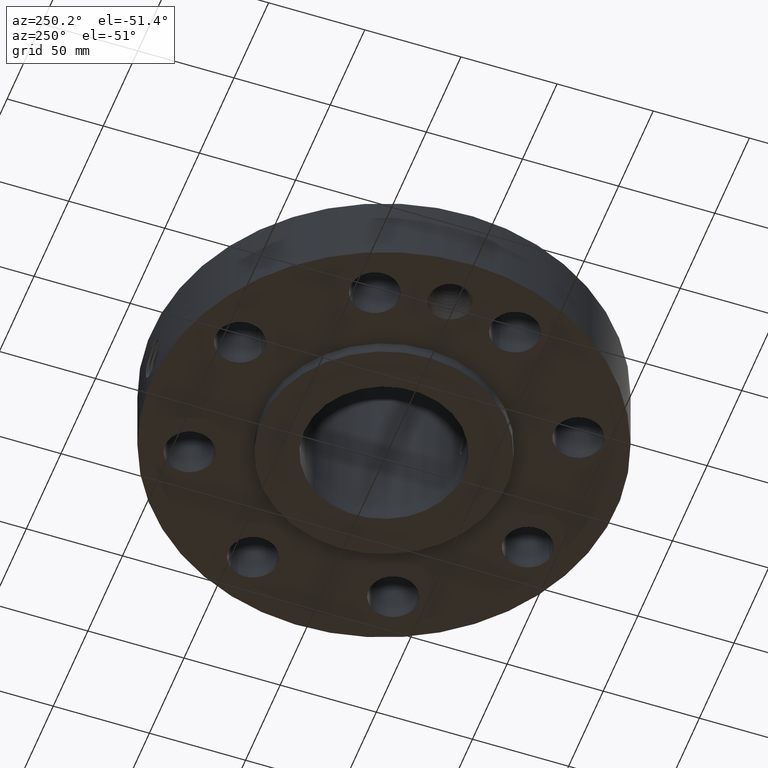
[diagram: clean part render]
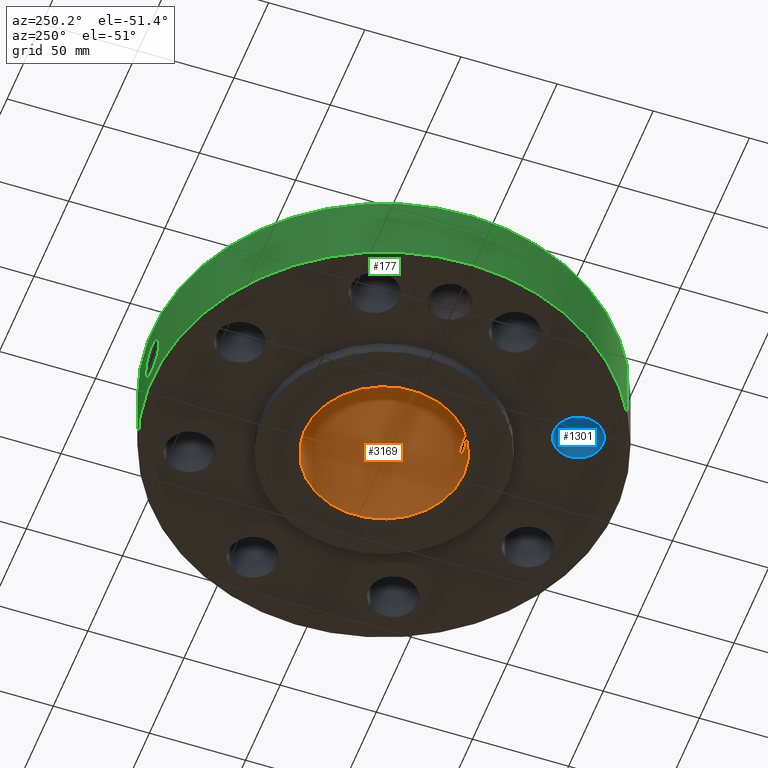
[diagram: same view with three faces highlighted in distinct colors, each labeled with its STEP entity id]
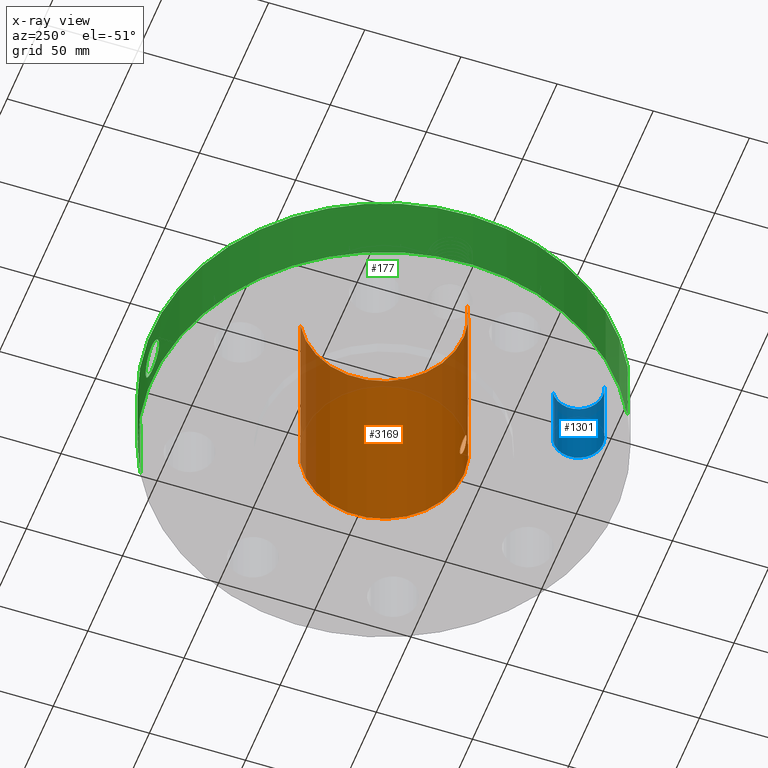
[diagram: x-ray of the same camera — body ghosted, the three highlighted faces saturated]
A machine part, auxiliary view with three faces highlighted in distinct colors.
The next image is the same camera in x-ray (body ghosted, the three faces saturated) — at least one of them is partly hidden behind the body in this view.
Their STEP definitions:

[orange] entity #3169 — the highlighted cylindrical surface (partial cylindrical patch) has radius 41.402 mm, axis along (0, 0, -1).
#2332=AXIS2_PLACEMENT_3D('Circle Axis2P3D',#2330,#2331,$) ;
#3100=AXIS2_PLACEMENT_3D('Cylinder Axis2P3D',#3097,#3098,#3099) ;
#3104=AXIS2_PLACEMENT_3D('Circle Axis2P3D',#3102,#3103,$) ;
#2330=CARTESIAN_POINT('Axis2P3D Location',(0.,0.,0.)) ;
#2334=CARTESIAN_POINT('Vertex',(0.781463627928,1.43045957589,-2.79741234551E-015)) ;
#2336=CARTESIAN_POINT('Vertex',(-0.781463627928,-1.43045957589,-2.79741234551E-015)) ;
#3097=CARTESIAN_POINT('Axis2P3D Location',(0.,0.,2.12500000001)) ;
#3102=CARTESIAN_POINT('Axis2P3D Location',(0.,0.,4.25000000002)) ;
#3106=CARTESIAN_POINT('Vertex',(0.781463627928,1.43045957589,4.25000000002)) ;
#3108=CARTESIAN_POINT('Vertex',(-0.781463627928,-1.43045957589,4.25000000002)) ;
#3111=CARTESIAN_POINT('Line Origine',(0.781463627928,1.43045957589,2.12500000001)) ;
#3116=CARTESIAN_POINT('Line Origine',(-0.781463627928,-1.43045957589,2.12500000001)) ;
#3128=CARTESIAN_POINT('Control Point',(0.164546730355,-1.62167332516,0.850107711515)) ;
#3129=CARTESIAN_POINT('Control Point',(0.15373090413,-1.62277077729,0.830309474409)) ;
#3130=CARTESIAN_POINT('Control Point',(0.139942349406,-1.62407876481,0.8121469454)) ;
#3131=CARTESIAN_POINT('Control Point',(0.123505340176,-1.6254644111,0.796205643258)) ;
#3132=CARTESIAN_POINT('Control Point',(0.0771149468103,-1.62865979876,0.763178194435)) ;
#3133=CARTESIAN_POINT('Control Point',(0.0210941914863,-1.63041284554,0.748992986923)) ;
#3134=CARTESIAN_POINT('Control Point',(-0.0139425212456,-1.6304972922,0.748336697801)) ;
#3135=CARTESIAN_POINT('Control Point',(-0.070479236252,-1.62897951384,0.760425773536)) ;
#3136=CARTESIAN_POINT('Control Point',(-0.118085597951,-1.62587625767,0.791718211057)) ;
#3137=CARTESIAN_POINT('Control Point',(-0.13511510247,-1.62449678863,0.807051725929)) ;
#3138=CARTESIAN_POINT('Control Point',(-0.174462073879,-1.62087059832,0.855085596918)) ;
#3139=CARTESIAN_POINT('Control Point',(-0.192229414378,-1.61861986851,0.916044524619)) ;
#3140=CARTESIAN_POINT('Control Point',(-0.192985142732,-1.61851751906,0.956842005435)) ;
#3141=CARTESIAN_POINT('Control Point',(-0.183175157005,-1.61978314997,0.995793182235)) ;
#3142=CARTESIAN_POINT('Control Point',(-0.164546730355,-1.62167332516,1.02989228849)) ;
#3143=CARTESIAN_POINT('Vertex',(0.164546730355,-1.62167332516,0.850107711515)) ;
#3145=CARTESIAN_POINT('Vertex',(-0.164546730355,-1.62167332516,1.02989228849)) ;
#3149=CARTESIAN_POINT('Control Point',(-0.164546730355,-1.62167332516,1.02989228849)) ;
#3150=CARTESIAN_POINT('Control Point',(-0.15373090413,-1.62277077729,1.0496905256)) ;
#3151=CARTESIAN_POINT('Control Point',(-0.139942349406,-1.62407876481,1.06785305461)) ;
#3152=CARTESIAN_POINT('Control Point',(-0.123505340177,-1.6254644111,1.08379435675)) ;
#3153=CARTESIAN_POINT('Control Point',(-0.0771149468115,-1.62865979876,1.11682180557)) ;
#3154=CARTESIAN_POINT('Control Point',(-0.0210941914882,-1.63041284554,1.13100701308)) ;
#3155=CARTESIAN_POINT('Control Point',(0.0139425212452,-1.6304972922,1.13166330221)) ;
#3156=CARTESIAN_POINT('Control Point',(0.0704792362507,-1.62897951384,1.11957422647)) ;
#3157=CARTESIAN_POINT('Control Point',(0.118085597949,-1.62587625767,1.08828178895)) ;
#3158=CARTESIAN_POINT('Control Point',(0.13511510247,-1.62449678863,1.07294827408)) ;
#3159=CARTESIAN_POINT('Control Point',(0.17446207388,-1.62087059832,1.02491440309)) ;
#3160=CARTESIAN_POINT('Control Point',(0.192229414377,-1.61861986851,0.963955475389)) ;
#3161=CARTESIAN_POINT('Control Point',(0.192985142732,-1.61851751906,0.923157994574)) ;
#3162=CARTESIAN_POINT('Control Point',(0.183175157005,-1.61978314997,0.884206817773)) ;
#3163=CARTESIAN_POINT('Control Point',(0.164546730355,-1.62167332516,0.850107711515)) ;
#2331=DIRECTION('Axis2P3D Direction',(0.,0.,-0.0393700787402)) ;
#3098=DIRECTION('Axis2P3D Direction',(0.,0.,-0.0393700787402)) ;
#3099=DIRECTION('Axis2P3D XDirection',(-0.0188750212049,-0.0345504945626,0.)) ;
#3103=DIRECTION('Axis2P3D Direction',(0.,0.,-0.0393700787402)) ;
#3112=DIRECTION('Vector Direction',(0.,0.,-0.0393700787402)) ;
#3117=DIRECTION('Vector Direction',(0.,0.,-0.0393700787402)) ;
#3113=VECTOR('Line Direction',#3112,0.0393700787402) ;
#3118=VECTOR('Line Direction',#3117,0.0393700787402) ;
#3122=ORIENTED_EDGE('',*,*,#3110,.F.) ;
#3123=ORIENTED_EDGE('',*,*,#3115,.T.) ;
#3124=ORIENTED_EDGE('',*,*,#2338,.T.) ;
#3125=ORIENTED_EDGE('',*,*,#3120,.F.) ;
#3166=ORIENTED_EDGE('',*,*,#3147,.F.) ;
#3167=ORIENTED_EDGE('',*,*,#3164,.F.) ;
#3168=FACE_BOUND('',#3165,.T.) ;
#3169=ADVANCED_FACE('PartBody',(#3126,#3168),#3101,.F.) ;
#3127=B_SPLINE_CURVE_WITH_KNOTS('',5,(#3128,#3129,#3130,#3131,#3132,#3133,#3134,#3135,#3136,#3137,#3138,#3139,#3140,#3141,#3142),.UNSPECIFIED.,.F.,.U.,(6,3,3,3,6),(0.,4.0566777695,10.1296924008,14.1893661875,21.1763057607),.UNSPECIFIED.) ;
#3148=B_SPLINE_CURVE_WITH_KNOTS('',5,(#3149,#3150,#3151,#3152,#3153,#3154,#3155,#3156,#3157,#3158,#3159,#3160,#3161,#3162,#3163),.UNSPECIFIED.,.F.,.U.,(6,3,3,3,6),(0.,4.05667776948,10.1296924007,14.1893661874,21.1763057607),.UNSPECIFIED.) ;
#2333=CIRCLE('generated circle',#2332,1.63000000001) ;
#3105=CIRCLE('generated circle',#3104,1.63000000001) ;
#3101=CYLINDRICAL_SURFACE('generated cylinder',#3100,1.63000000001) ;
#2338=EDGE_CURVE('',#2335,#2337,#2333,.T.) ;
#3110=EDGE_CURVE('',#3107,#3109,#3105,.T.) ;
#3115=EDGE_CURVE('',#3107,#2335,#3114,.T.) ;
#3120=EDGE_CURVE('',#3109,#2337,#3119,.T.) ;
#3147=EDGE_CURVE('',#3144,#3146,#3127,.T.) ;
#3164=EDGE_CURVE('',#3146,#3144,#3148,.T.) ;
#3121=EDGE_LOOP('',(#3122,#3123,#3124,#3125)) ;
#3165=EDGE_LOOP('',(#3166,#3167)) ;
#3126=FACE_OUTER_BOUND('',#3121,.T.) ;
#3114=LINE('Line',#3111,#3113) ;
#3119=LINE('Line',#3116,#3118) ;
#2335=VERTEX_POINT('',#2334) ;
#2337=VERTEX_POINT('',#2336) ;
#3107=VERTEX_POINT('',#3106) ;
#3109=VERTEX_POINT('',#3108) ;
#3144=VERTEX_POINT('',#3143) ;
#3146=VERTEX_POINT('',#3145) ;

[blue] entity #1301 — the highlighted cylindrical surface (edge-blend (fillet) strip) has radius 12.7 mm, axis along (0, -0, -1).
#266=AXIS2_PLACEMENT_3D('Circle Axis2P3D',#264,#265,$) ;
#580=AXIS2_PLACEMENT_3D('Circle Axis2P3D',#578,#579,$) ;
#1283=AXIS2_PLACEMENT_3D('Cylinder Axis2P3D',#1280,#1281,#1282) ;
#264=CARTESIAN_POINT('Axis2P3D Location',(-1.43506287137,-3.46454824693,0.250000000001)) ;
#268=CARTESIAN_POINT('Vertex',(-1.19535010207,-3.02575696598,0.250000000001)) ;
#270=CARTESIAN_POINT('Vertex',(-1.67477564068,-3.90333952788,0.250000000001)) ;
#573=CARTESIAN_POINT('Vertex',(-1.67477564068,-3.90333952788,1.75000000001)) ;
#575=CARTESIAN_POINT('Vertex',(-1.19535010207,-3.02575696598,1.75000000001)) ;
#578=CARTESIAN_POINT('Axis2P3D Location',(-1.43506287137,-3.46454824693,1.75000000001)) ;
#1280=CARTESIAN_POINT('Axis2P3D Location',(-1.43506287137,-3.46454824693,1.74606299213)) ;
#1285=CARTESIAN_POINT('Line Origine',(-1.19535010207,-3.02575696598,1.)) ;
#1290=CARTESIAN_POINT('Line Origine',(-1.67477564068,-3.90333952788,1.)) ;
#265=DIRECTION('Axis2P3D Direction',(0.,0.,-0.0393700787402)) ;
#579=DIRECTION('Axis2P3D Direction',(0.,0.,-0.0393700787402)) ;
#1281=DIRECTION('Axis2P3D Direction',(0.,-0.,-0.0393700787402)) ;
#1282=DIRECTION('Axis2P3D XDirection',(-0.0188750212049,-0.0345504945626,0.)) ;
#1286=DIRECTION('Vector Direction',(0.,0.,-0.0393700787402)) ;
#1291=DIRECTION('Vector Direction',(0.,0.,-0.0393700787402)) ;
#1287=VECTOR('Line Direction',#1286,0.0393700787402) ;
#1292=VECTOR('Line Direction',#1291,0.0393700787402) ;
#1296=ORIENTED_EDGE('',*,*,#1289,.F.) ;
#1297=ORIENTED_EDGE('',*,*,#272,.T.) ;
#1298=ORIENTED_EDGE('',*,*,#1294,.T.) ;
#1299=ORIENTED_EDGE('',*,*,#582,.F.) ;
#1301=ADVANCED_FACE('PartBody',(#1300),#1284,.F.) ;
#267=CIRCLE('generated circle',#266,0.500000000002) ;
#581=CIRCLE('generated circle',#580,0.500000000002) ;
#1284=CYLINDRICAL_SURFACE('generated cylinder',#1283,0.500000000002) ;
#272=EDGE_CURVE('',#269,#271,#267,.T.) ;
#582=EDGE_CURVE('',#576,#574,#581,.T.) ;
#1289=EDGE_CURVE('',#269,#576,#1288,.F.) ;
#1294=EDGE_CURVE('',#271,#574,#1293,.F.) ;
#1295=EDGE_LOOP('',(#1296,#1297,#1298,#1299)) ;
#1300=FACE_OUTER_BOUND('',#1295,.T.) ;
#1288=LINE('Line',#1285,#1287) ;
#1293=LINE('Line',#1290,#1292) ;
#269=VERTEX_POINT('',#268) ;
#271=VERTEX_POINT('',#270) ;
#574=VERTEX_POINT('',#573) ;
#576=VERTEX_POINT('',#575) ;

[green] entity #177 — the highlighted cylindrical surface (partial cylindrical patch) has radius 120.65 mm, axis along (0, 0, -1).
#38=AXIS2_PLACEMENT_3D('Cylinder Axis2P3D',#35,#36,#37) ;
#42=AXIS2_PLACEMENT_3D('Circle Axis2P3D',#40,#41,$) ;
#58=AXIS2_PLACEMENT_3D('Circle Axis2P3D',#56,#57,$) ;
#35=CARTESIAN_POINT('Axis2P3D Location',(0.,0.,2.12500000001)) ;
#40=CARTESIAN_POINT('Axis2P3D Location',(0.,0.,0.250000000001)) ;
#44=CARTESIAN_POINT('Vertex',(-2.27727130838,-4.168517169,0.250000000001)) ;
#46=CARTESIAN_POINT('Vertex',(2.27727130838,4.168517169,0.250000000001)) ;
#49=CARTESIAN_POINT('Line Origine',(-2.27727130838,-4.168517169,1.)) ;
#53=CARTESIAN_POINT('Vertex',(-2.27727130838,-4.168517169,1.75000000001)) ;
#56=CARTESIAN_POINT('Axis2P3D Location',(0.,0.,1.75000000001)) ;
#60=CARTESIAN_POINT('Vertex',(2.27727130838,4.168517169,1.75000000001)) ;
#63=CARTESIAN_POINT('Line Origine',(2.27727130838,4.168517169,1.)) ;
#75=CARTESIAN_POINT('Control Point',(-0.0664443336882,4.74953525629,1.28781472966)) ;
#76=CARTESIAN_POINT('Control Point',(-0.0447973834791,4.74983808953,1.29195972283)) ;
#77=CARTESIAN_POINT('Control Point',(-0.0227596203804,4.74999661825,1.29407372225)) ;
#78=CARTESIAN_POINT('Control Point',(-0.000717080986339,4.74999994589,1.29411849685)) ;
#79=CARTESIAN_POINT('Vertex',(-0.0664188696294,4.74953588304,1.28781991618)) ;
#81=CARTESIAN_POINT('Vertex',(-0.000716859021627,4.74999994592,1.29411850704)) ;
#85=CARTESIAN_POINT('Control Point',(-0.0664187407928,4.74953561425,1.28781927448)) ;
#86=CARTESIAN_POINT('Control Point',(-0.102753721002,4.74902749644,1.28201870457)) ;
#87=CARTESIAN_POINT('Control Point',(-0.138115211601,4.74810201592,1.26977317773)) ;
#88=CARTESIAN_POINT('Control Point',(-0.170475904125,4.74693985282,1.25208714514)) ;
#89=CARTESIAN_POINT('Vertex',(-0.170475904125,4.74693985282,1.25208714514)) ;
#93=CARTESIAN_POINT('Control Point',(-0.0289717654606,4.74991164518,0.53104117424)) ;
#94=CARTESIAN_POINT('Control Point',(-0.0747966531426,4.74963213937,0.536930034353)) ;
#95=CARTESIAN_POINT('Control Point',(-0.119477769901,4.74880696846,0.550185753379)) ;
#96=CARTESIAN_POINT('Control Point',(-0.161312068973,4.74750063069,0.570440242412)) ;
#97=CARTESIAN_POINT('Control Point',(-0.245546224567,4.74402236715,0.628559076301)) ;
#98=CARTESIAN_POINT('Control Point',(-0.306057140325,4.74027319235,0.709607764395)) ;
#99=CARTESIAN_POINT('Control Point',(-0.330993871936,4.73849840088,0.759101526858)) ;
#100=CARTESIAN_POINT('Control Point',(-0.358450567594,4.73646747946,0.847415945742)) ;
#101=CARTESIAN_POINT('Control Point',(-0.360779964709,4.73627580375,0.938205105137)) ;
#102=CARTESIAN_POINT('Control Point',(-0.357515798085,4.73652939594,0.975158290103)) ;
#103=CARTESIAN_POINT('Control Point',(-0.339028118472,4.73793770505,1.06509307512)) ;
#104=CARTESIAN_POINT('Control Point',(-0.295443998875,4.74092283743,1.14643073312)) ;
#105=CARTESIAN_POINT('Control Point',(-0.260804026782,4.74309248769,1.19000963136)) ;
#106=CARTESIAN_POINT('Control Point',(-0.218315242621,4.7452218082,1.22594159399)) ;
#107=CARTESIAN_POINT('Control Point',(-0.170475904125,4.74693985282,1.25208714514)) ;
#108=CARTESIAN_POINT('Vertex',(-0.0289717654606,4.74991164518,0.53104117424)) ;
#112=CARTESIAN_POINT('Control Point',(-0.0289717654606,4.74991164518,0.53104117424)) ;
#113=CARTESIAN_POINT('Control Point',(-0.0193073849474,4.74997059241,0.530854119281)) ;
#114=CARTESIAN_POINT('Control Point',(-0.00964169540521,4.75000000556,0.530965378902)) ;
#115=CARTESIAN_POINT('Control Point',(2.72878353977E-006,4.75000000002,0.531374667805)) ;
#116=CARTESIAN_POINT('Vertex',(2.72878353782E-006,4.75000000002,0.531374667805)) ;
#120=CARTESIAN_POINT('Control Point',(0.194608877525,4.7460117346,0.583778592451)) ;
#121=CARTESIAN_POINT('Control Point',(0.13483936629,4.74846256661,0.552003246568)) ;
#122=CARTESIAN_POINT('Control Point',(0.0678388662179,4.74999996105,0.534253489827)) ;
#123=CARTESIAN_POINT('Control Point',(2.72878353978E-006,4.75000000002,0.531374667805)) ;
#124=CARTESIAN_POINT('Vertex',(0.194608877525,4.7460117346,0.583778592451)) ;
#128=CARTESIAN_POINT('Control Point',(0.332827639994,4.73832520647,0.701219893118)) ;
#129=CARTESIAN_POINT('Control Point',(0.305364932817,4.74025423152,0.664558567279)) ;
#130=CARTESIAN_POINT('Control Point',(0.272251915485,4.74236913954,0.632218481093)) ;
#131=CARTESIAN_POINT('Control Point',(0.234901661665,4.74435954031,0.605199499463)) ;
#132=CARTESIAN_POINT('Control Point',(0.194608877525,4.7460117346,0.583778592451)) ;
#133=CARTESIAN_POINT('Vertex',(0.332827639994,4.73832520647,0.701219893118)) ;
#137=CARTESIAN_POINT('Control Point',(0.332827639994,4.73832520647,0.701219893118)) ;
#138=CARTESIAN_POINT('Control Point',(0.362191423076,4.73626264676,0.744057421637)) ;
#139=CARTESIAN_POINT('Control Point',(0.38460662418,4.73444241076,0.791551724291)) ;
#140=CARTESIAN_POINT('Control Point',(0.399485379713,4.73317703046,0.841804248204)) ;
#141=CARTESIAN_POINT('Control Point',(0.406764031121,4.73255142848,0.893249885444)) ;
#142=CARTESIAN_POINT('Vertex',(0.406764031121,4.73255142848,0.893249885444)) ;
#146=CARTESIAN_POINT('Control Point',(0.406764031121,4.73255142848,0.893249885444)) ;
#147=CARTESIAN_POINT('Control Point',(0.410937043432,4.73219275698,0.94359082863)) ;
#148=CARTESIAN_POINT('Control Point',(0.406199449952,4.73259532086,0.994560330862)) ;
#149=CARTESIAN_POINT('Control Point',(0.392245340204,4.73383204363,1.04389645051)) ;
#150=CARTESIAN_POINT('Control Point',(0.356408433105,4.73676757046,1.11810453387)) ;
#151=CARTESIAN_POINT('Control Point',(0.303355472263,4.74037517985,1.17883123609)) ;
#152=CARTESIAN_POINT('Control Point',(0.280572013148,4.74179821439,1.20005457041)) ;
#153=CARTESIAN_POINT('Control Point',(0.216669478448,4.74536023062,1.24871840008)) ;
#154=CARTESIAN_POINT('Control Point',(0.143130760671,4.7481822494,1.27972813256)) ;
#155=CARTESIAN_POINT('Control Point',(0.0957567995252,4.74940386749,1.29169900669)) ;
#156=CARTESIAN_POINT('Control Point',(0.047590155686,4.75000025916,1.29648726642)) ;
#157=CARTESIAN_POINT('Control Point',(-2.58579355241E-005,4.74999999995,1.29415298437)) ;
#158=CARTESIAN_POINT('Vertex',(-2.5857935516E-005,4.74999999995,1.29415298437)) ;
#162=CARTESIAN_POINT('Control Point',(-0.000716859009901,4.74999994592,1.29411850702)) ;
#163=CARTESIAN_POINT('Control Point',(-0.000371381626736,4.74999999807,1.29413604576)) ;
#164=CARTESIAN_POINT('Control Point',(-2.58579432267E-005,4.74999999995,1.29415298437)) ;
#36=DIRECTION('Axis2P3D Direction',(0.,0.,-0.0393700787402)) ;
#37=DIRECTION('Axis2P3D XDirection',(0.0188750212049,0.0345504945626,0.)) ;
#41=DIRECTION('Axis2P3D Direction',(0.,0.,-0.0393700787402)) ;
#50=DIRECTION('Vector Direction',(0.,0.,-0.0393700787402)) ;
#57=DIRECTION('Axis2P3D Direction',(0.,0.,-0.0393700787402)) ;
#64=DIRECTION('Vector Direction',(0.,0.,-0.0393700787402)) ;
#51=VECTOR('Line Direction',#50,0.0393700787402) ;
#65=VECTOR('Line Direction',#64,0.0393700787402) ;
#69=ORIENTED_EDGE('',*,*,#48,.F.) ;
#70=ORIENTED_EDGE('',*,*,#55,.T.) ;
#71=ORIENTED_EDGE('',*,*,#62,.T.) ;
#72=ORIENTED_EDGE('',*,*,#67,.F.) ;
#167=ORIENTED_EDGE('',*,*,#83,.F.) ;
#168=ORIENTED_EDGE('',*,*,#91,.T.) ;
#169=ORIENTED_EDGE('',*,*,#110,.F.) ;
#170=ORIENTED_EDGE('',*,*,#118,.T.) ;
#171=ORIENTED_EDGE('',*,*,#126,.F.) ;
#172=ORIENTED_EDGE('',*,*,#135,.F.) ;
#173=ORIENTED_EDGE('',*,*,#144,.T.) ;
#174=ORIENTED_EDGE('',*,*,#160,.T.) ;
#175=ORIENTED_EDGE('',*,*,#165,.F.) ;
#176=FACE_BOUND('',#166,.T.) ;
#177=ADVANCED_FACE('PartBody',(#73,#176),#39,.T.) ;
#74=B_SPLINE_CURVE_WITH_KNOTS('',3,(#75,#76,#77,#78),.UNSPECIFIED.,.F.,.U.,(4,4),(4.07664135905,6.52206473112),.UNSPECIFIED.) ;
#84=B_SPLINE_CURVE_WITH_KNOTS('',3,(#85,#86,#87,#88),.UNSPECIFIED.,.F.,.U.,(4,4),(0.,4.13427651577),.UNSPECIFIED.) ;
#92=B_SPLINE_CURVE_WITH_KNOTS('',5,(#93,#94,#95,#96,#97,#98,#99,#100,#101,#102,#103,#104,#105,#106,#107),.UNSPECIFIED.,.F.,.U.,(6,3,3,3,6),(0.,8.03013530548,17.9302111436,24.7841526647,34.9704332318),.UNSPECIFIED.) ;
#111=B_SPLINE_CURVE_WITH_KNOTS('',3,(#112,#113,#114,#115),.UNSPECIFIED.,.F.,.U.,(4,4),(0.,1.00795509622),.UNSPECIFIED.) ;
#119=B_SPLINE_CURVE_WITH_KNOTS('',3,(#120,#121,#122,#123),.UNSPECIFIED.,.F.,.U.,(4,4),(0.,7.08966954505),.UNSPECIFIED.) ;
#127=B_SPLINE_CURVE_WITH_KNOTS('',4,(#128,#129,#130,#131,#132),.UNSPECIFIED.,.F.,.U.,(5,5),(0.,6.37253605656),.UNSPECIFIED.) ;
#136=B_SPLINE_CURVE_WITH_KNOTS('',4,(#137,#138,#139,#140,#141),.UNSPECIFIED.,.F.,.U.,(5,5),(0.,7.2245148719),.UNSPECIFIED.) ;
#145=B_SPLINE_CURVE_WITH_KNOTS('',5,(#146,#147,#148,#149,#150,#151,#152,#153,#154,#155,#156,#157),.UNSPECIFIED.,.F.,.U.,(6,3,3,6),(0.,8.77965380787,14.3423432746,23.2427618108),.UNSPECIFIED.) ;
#161=B_SPLINE_CURVE_WITH_KNOTS('',2,(#162,#163,#164),.UNSPECIFIED.,.F.,.U.,(3,3),(1.10272046804,1.12855468109),.UNSPECIFIED.) ;
#43=CIRCLE('generated circle',#42,4.75000000002) ;
#59=CIRCLE('generated circle',#58,4.75000000002) ;
#39=CYLINDRICAL_SURFACE('generated cylinder',#38,4.75000000002) ;
#48=EDGE_CURVE('',#45,#47,#43,.T.) ;
#55=EDGE_CURVE('',#45,#54,#52,.F.) ;
#62=EDGE_CURVE('',#54,#61,#59,.T.) ;
#67=EDGE_CURVE('',#47,#61,#66,.F.) ;
#83=EDGE_CURVE('',#80,#82,#74,.T.) ;
#91=EDGE_CURVE('',#80,#90,#84,.T.) ;
#110=EDGE_CURVE('',#109,#90,#92,.T.) ;
#118=EDGE_CURVE('',#109,#117,#111,.T.) ;
#126=EDGE_CURVE('',#125,#117,#119,.T.) ;
#135=EDGE_CURVE('',#134,#125,#127,.T.) ;
#144=EDGE_CURVE('',#134,#143,#136,.T.) ;
#160=EDGE_CURVE('',#143,#159,#145,.T.) ;
#165=EDGE_CURVE('',#82,#159,#161,.T.) ;
#68=EDGE_LOOP('',(#69,#70,#71,#72)) ;
#166=EDGE_LOOP('',(#167,#168,#169,#170,#171,#172,#173,#174,#175)) ;
#73=FACE_OUTER_BOUND('',#68,.T.) ;
#52=LINE('Line',#49,#51) ;
#66=LINE('Line',#63,#65) ;
#45=VERTEX_POINT('',#44) ;
#47=VERTEX_POINT('',#46) ;
#54=VERTEX_POINT('',#53) ;
#61=VERTEX_POINT('',#60) ;
#80=VERTEX_POINT('',#79) ;
#82=VERTEX_POINT('',#81) ;
#90=VERTEX_POINT('',#89) ;
#109=VERTEX_POINT('',#108) ;
#117=VERTEX_POINT('',#116) ;
#125=VERTEX_POINT('',#124) ;
#134=VERTEX_POINT('',#133) ;
#143=VERTEX_POINT('',#142) ;
#159=VERTEX_POINT('',#158) ;